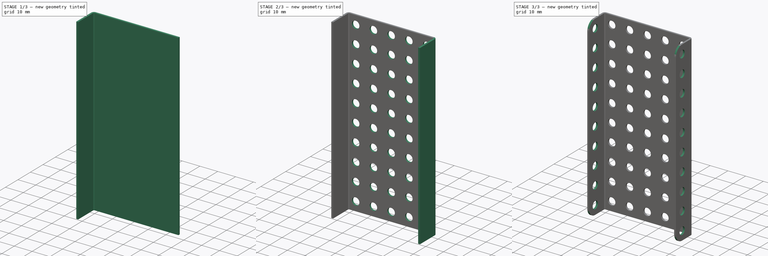
[diagram: build sequence overview — one tinted view per stage of 3, left to right]
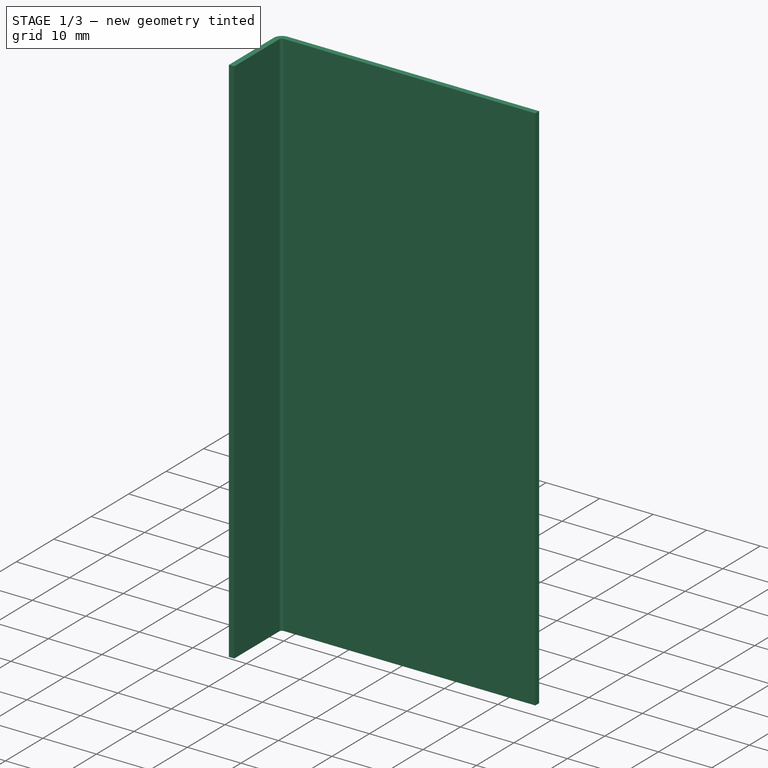
[diagram: stage 1 of 3 — iso view after this stage's code; geometry added in this stage tinted green]
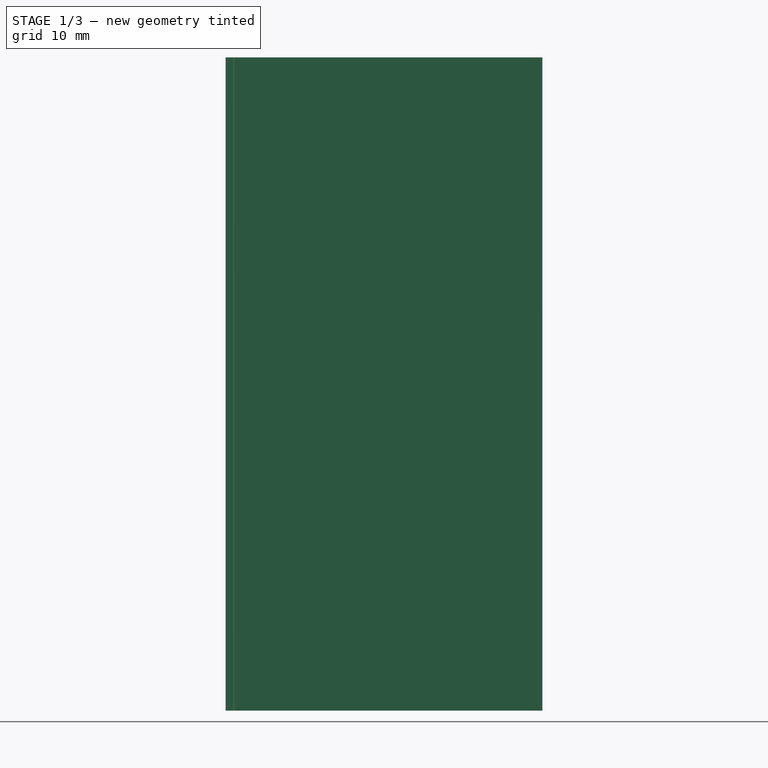
[diagram: stage 1 of 3 — front view after this stage's code; geometry added in this stage tinted green]
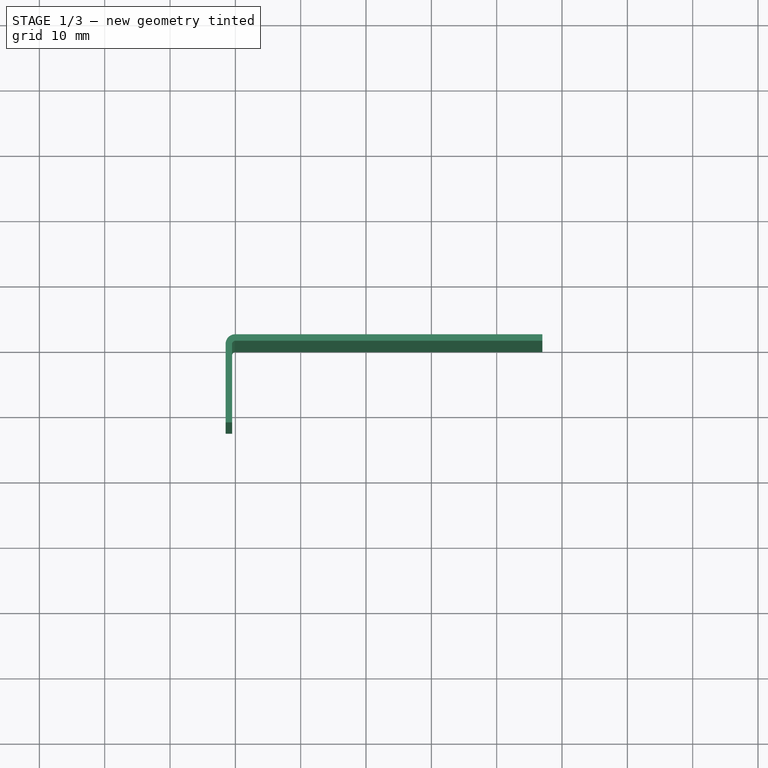
[diagram: stage 1 of 3 — top view after this stage's code; geometry added in this stage tinted green]
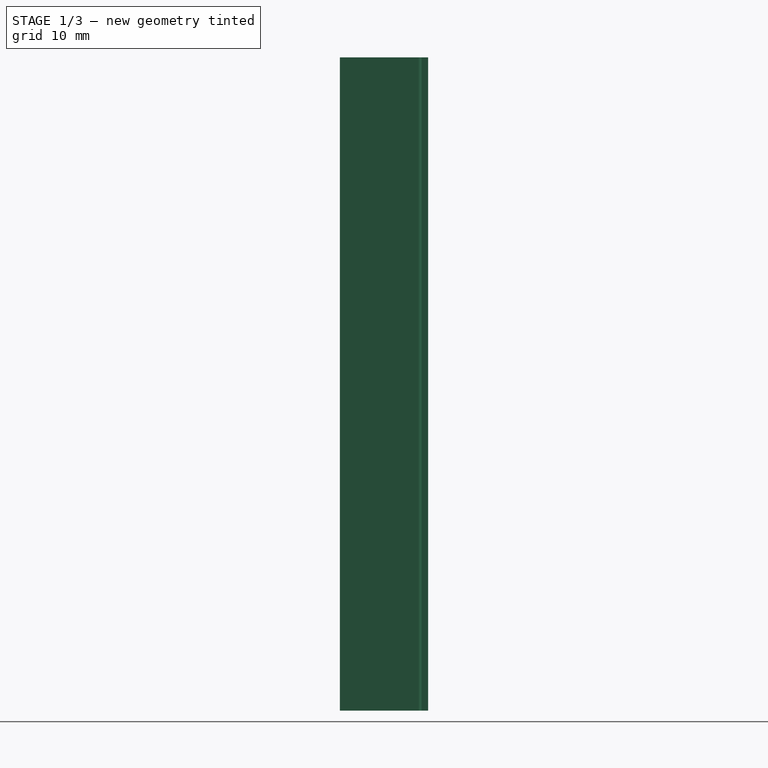
[diagram: stage 1 of 3 — right view after this stage's code; geometry added in this stage tinted green]
FCSTD DOCUMENT  (FreeCAD 0.16RUnknown)
Label: panel_5_5x10_5_v2
License: All rights reserved
LicenseURL: http://en.wikipedia.org/wiki/All_rights_reserved
objects: Sketcher::SketchObject×3, Part::FeaturePython×2, PartDesign::Pocket×2, Drawing::FeatureViewPart×2, PartDesign::Pad×1, PartDesign::Fillet×1, Part::Feature×1, Drawing::FeaturePage×1
note: 13 computed .brp shape members not serialized (recipe doc carries the construction recipe); baked Part::Feature solids carry a one-line shape summary decoded from their .brp

FEATURE [Sketcher::SketchObject] Sketch
  sketch-geometry (4):
    g0: LineSegment StartX=0 StartY=0 StartZ=0 EndX=47 EndY=0 EndZ=0
    g1: LineSegment StartX=47 StartY=0 StartZ=0 EndX=47 EndY=1 EndZ=0
    g2: LineSegment StartX=47 StartY=1 StartZ=0 EndX=0 EndY=1 EndZ=0
    g3: LineSegment StartX=0 StartY=1 StartZ=0 EndX=0 EndY=0 EndZ=0
  constraints (11):
    c: Coincident(g0,g1)
    c: Coincident(g1,g2)
    c: Coincident(g2,g3)
    c: Coincident(g3,g0)
    c: Horizontal(g0)
    c: Horizontal(g2)
    c: Vertical(g1)
    c: Vertical(g3)
    c: Coincident(g0,g-1)
    c: DistanceY(g-1,g2) = 1
    c: DistanceX(g-1,g0) = 47
FEATURE [PartDesign::Pad] Pad
  Length = 100
  Length2 = 100
  Sketch = -> Sketch
  Type = 0
FEATURE [Part::FeaturePython] Bend  # WARN: FeaturePython — macro-defined, semantics opaque (R4)
  angle = 90
  baseObject = -> Pad [Face4]
  gap1 = 0
  gap2 = 0
  invert = false
  length = 12
  radius = 0.5
  reliefd = 1
  reliefw = 0.5
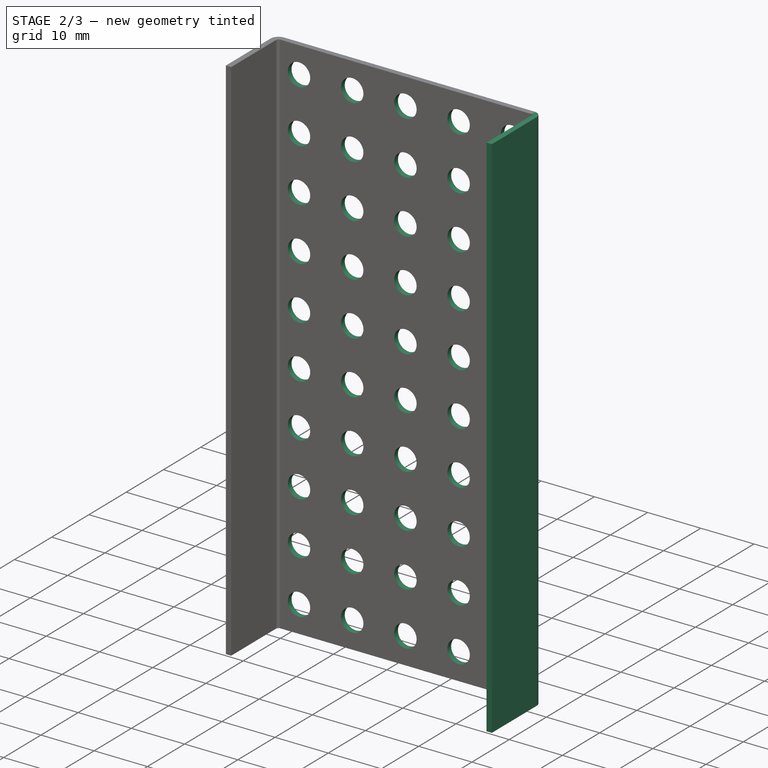
[diagram: stage 2 of 3 — iso view after this stage's code; geometry added in this stage tinted green]
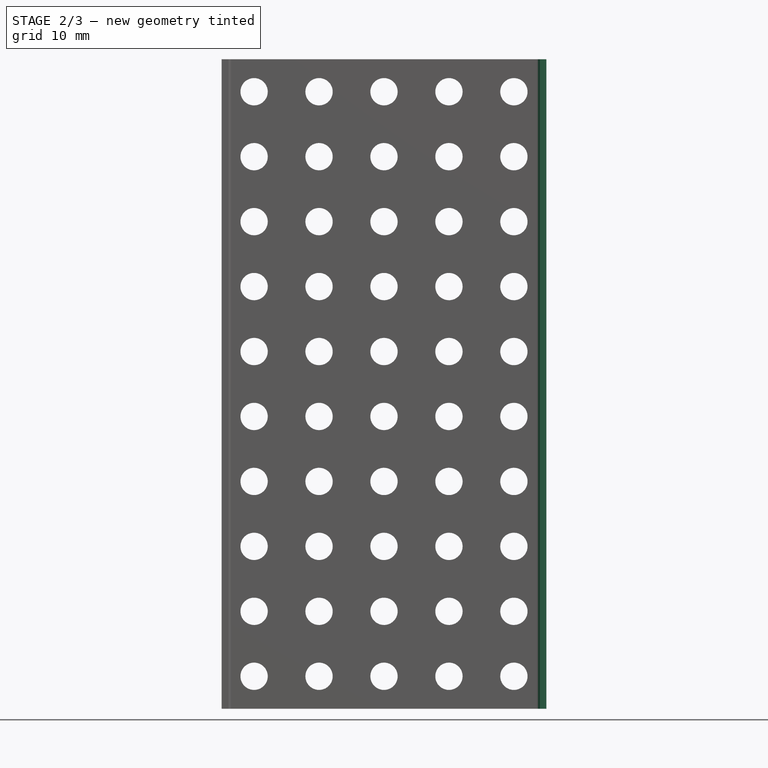
[diagram: stage 2 of 3 — front view after this stage's code; geometry added in this stage tinted green]
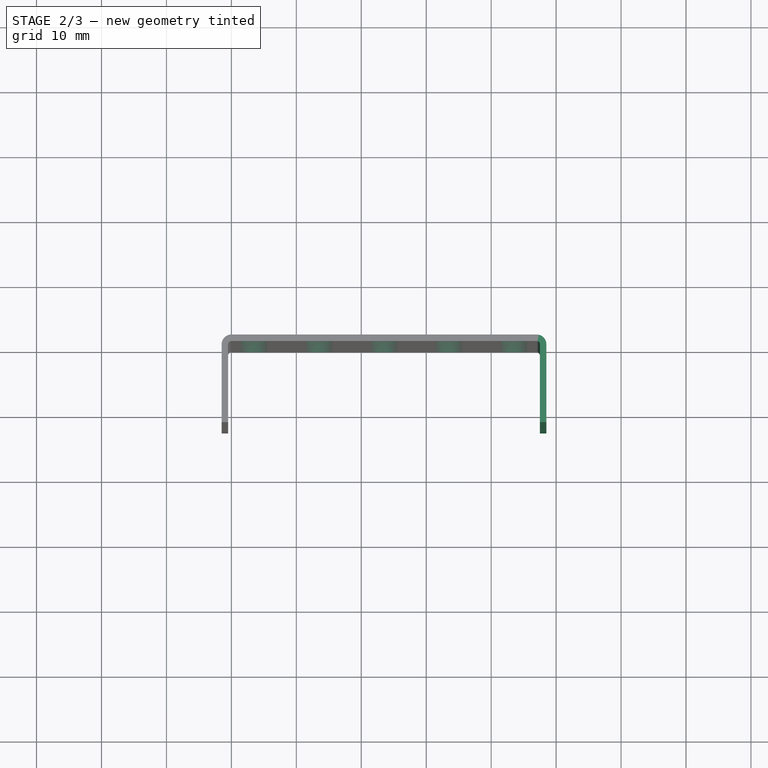
[diagram: stage 2 of 3 — top view after this stage's code; geometry added in this stage tinted green]
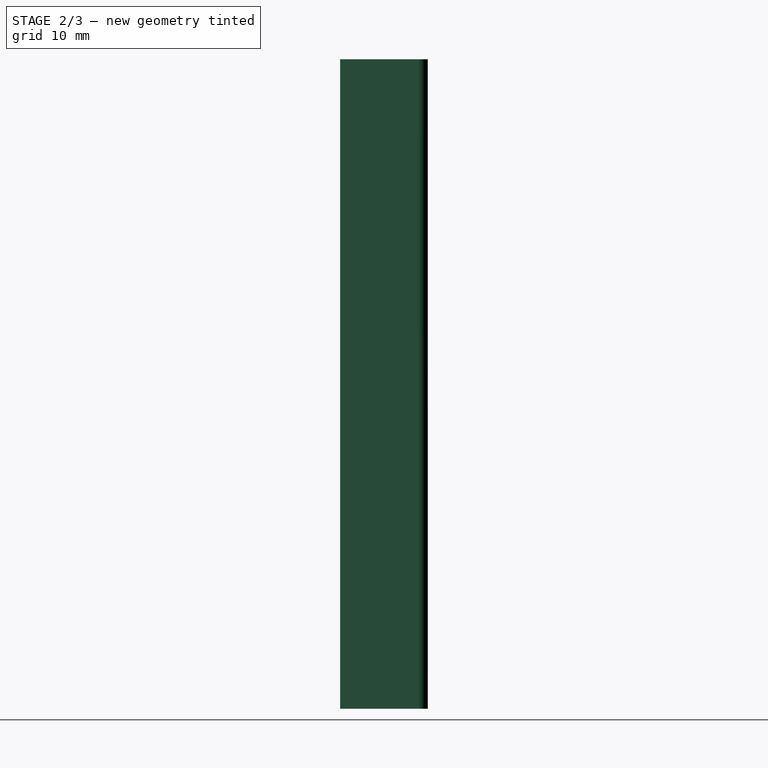
[diagram: stage 2 of 3 — right view after this stage's code; geometry added in this stage tinted green]
FEATURE [Part::FeaturePython] Bend001  # WARN: FeaturePython — macro-defined, semantics opaque (R4)
  angle = 90
  baseObject = -> Bend [Face14]
  gap1 = 0
  gap2 = 0
  invert = true
  length = 12
  radius = 0.5
  reliefd = 1
  reliefw = 0.5
FEATURE [Sketcher::SketchObject] Sketch003
  Placement = pos=(0,1,0) rot=(0,0.707107,0.707107;3.14159rad)
  Support = -> Bend001 [Face11]
  sketch-geometry (99):
    g0: Circle CenterX=-43.5 CenterY=95 CenterZ=0 NormalX=0 NormalY=0 NormalZ=1 Radius=2.1
    g1: Circle CenterX=-33.5 CenterY=95 CenterZ=0 NormalX=0 NormalY=0 NormalZ=1 Radius=2.1
    g2: LineSegment [constr] StartX=-43.5 StartY=95 StartZ=0 EndX=-33.5 EndY=95 EndZ=0
    g3: Circle CenterX=-23.5 CenterY=95 CenterZ=0 NormalX=0 NormalY=0 NormalZ=1 Radius=2.1
    g4: LineSegment [constr] StartX=-33.5 StartY=95 StartZ=0 EndX=-23.5 EndY=95 EndZ=0
    g5: Circle CenterX=-13.5 CenterY=95 CenterZ=0 NormalX=0 NormalY=0 NormalZ=1 Radius=2.1
    g6: LineSegment [constr] StartX=-23.5 StartY=95 StartZ=0 EndX=-13.5 EndY=95 EndZ=0
    g7: Circle CenterX=-3.5 CenterY=95 CenterZ=0 NormalX=0 NormalY=0 NormalZ=1 Radius=2.1
    g8: LineSegment [constr] StartX=-13.5 StartY=95 StartZ=0 EndX=-3.5 EndY=95 EndZ=0
    g9: Circle CenterX=-43.5 CenterY=85 CenterZ=0 NormalX=0 NormalY=0 NormalZ=1 Radius=2.1
    g10: LineSegment [constr] StartX=-43.5 StartY=95 StartZ=0 EndX=-43.5 EndY=85 EndZ=0
    g11: Circle CenterX=-33.5 CenterY=85 CenterZ=0 NormalX=0 NormalY=0 NormalZ=1 Radius=2.1
    g12: LineSegment [constr] StartX=-43.5 StartY=85 StartZ=0 EndX=-33.5 EndY=85 EndZ=0
    g13: Circle CenterX=-23.5 CenterY=85 CenterZ=0 NormalX=0 NormalY=0 NormalZ=1 Radius=2.1
    g14: LineSegment [constr] StartX=-33.5 StartY=85 StartZ=0 EndX=-23.5 EndY=85 EndZ=0
    g15: Circle CenterX=-13.5 CenterY=85 CenterZ=0 NormalX=0 NormalY=0 NormalZ=1 Radius=2.1
    g16: LineSegment [constr] StartX=-23.5 StartY=85 StartZ=0 EndX=-13.5 EndY=85 EndZ=0
    g17: Circle CenterX=-3.5 CenterY=85 CenterZ=0 NormalX=0 NormalY=0 NormalZ=1 Radius=2.1
    g18: LineSegment [constr] StartX=-13.5 StartY=85 StartZ=0 EndX=-3.5 EndY=85 EndZ=0
    g19: Circle CenterX=-43.5 CenterY=75 CenterZ=0 NormalX=0 NormalY=0 NormalZ=1 Radius=2.1
    g20: LineSegment [constr] StartX=-43.5 StartY=85 StartZ=0 EndX=-43.5 EndY=75 EndZ=0
    g21: Circle CenterX=-33.5 CenterY=75 CenterZ=0 NormalX=0 NormalY=0 NormalZ=1 Radius=2.1
    g22: LineSegment [constr] StartX=-43.5 StartY=75 StartZ=0 EndX=-33.5 EndY=75 EndZ=0
    g23: Circle CenterX=-23.5 CenterY=75 CenterZ=0 NormalX=0 NormalY=0 NormalZ=1 Radius=2.1
    g24: LineSegment [constr] StartX=-33.5 StartY=75 StartZ=0 EndX=-23.5 EndY=75 EndZ=0
    g25: Circle CenterX=-13.5 CenterY=75 CenterZ=0 NormalX=0 NormalY=0 NormalZ=1 Radius=2.1
    g26: LineSegment [constr] StartX=-23.5 StartY=75 StartZ=0 EndX=-13.5 EndY=75 EndZ=0
    g27: Circle CenterX=-3.5 CenterY=75 CenterZ=0 NormalX=0 NormalY=0 NormalZ=1 Radius=2.1
    g28: LineSegment [constr] StartX=-13.5 StartY=75 StartZ=0 EndX=-3.5 EndY=75 EndZ=0
    g29: Circle CenterX=-43.5 CenterY=65 CenterZ=0 NormalX=0 NormalY=0 NormalZ=1 Radius=2.1
    g30: LineSegment [constr] StartX=-43.5 StartY=75 StartZ=0 EndX=-43.5 EndY=65 EndZ=0
    g31: Circle CenterX=-33.5 CenterY=65 CenterZ=0 NormalX=0 NormalY=0 NormalZ=1 Radius=2.1
    g32: LineSegment [constr] StartX=-43.5 StartY=65 StartZ=0 EndX=-33.5 EndY=65 EndZ=0
    g33: Circle CenterX=-23.5 CenterY=65 CenterZ=0 NormalX=0 NormalY=0 NormalZ=1 Radius=2.1
    g34: LineSegment [constr] StartX=-33.5 StartY=65 StartZ=0 EndX=-23.5 EndY=65 EndZ=0
    g35: Circle CenterX=-13.5 CenterY=65 CenterZ=0 NormalX=0 NormalY=0 NormalZ=1 Radius=2.1
    g36: LineSegment [constr] StartX=-23.5 StartY=65 StartZ=0 EndX=-13.5 EndY=65 EndZ=0
    g37: Circle CenterX=-3.5 CenterY=65 CenterZ=0 NormalX=0 NormalY=0 NormalZ=1 Radius=2.1
    g38: LineSegment [constr] StartX=-13.5 StartY=65 StartZ=0 EndX=-3.5 EndY=65 EndZ=0
    g39: Circle CenterX=-43.5 CenterY=55 CenterZ=0 NormalX=0 NormalY=0 NormalZ=1 Radius=2.1
    g40: LineSegment [constr] StartX=-43.5 StartY=65 StartZ=0 EndX=-43.5 EndY=55 EndZ=0
    g41: Circle CenterX=-33.5 CenterY=55 CenterZ=0 NormalX=0 NormalY=0 NormalZ=1 Radius=2.1
    g42: LineSegment [constr] StartX=-43.5 StartY=55 StartZ=0 EndX=-33.5 EndY=55 EndZ=0
    g43: Circle CenterX=-23.5 CenterY=55 CenterZ=0 NormalX=0 NormalY=0 NormalZ=1 Radius=2.1
    g44: LineSegment [constr] StartX=-33.5 StartY=55 StartZ=0 EndX=-23.5 EndY=55 EndZ=0
    g45: Circle CenterX=-13.5 CenterY=55 CenterZ=0 NormalX=0 NormalY=0 NormalZ=1 Radius=2.1
    g46: LineSegment [constr] StartX=-23.5 StartY=55 StartZ=0 EndX=-13.5 EndY=55 EndZ=0
    g47: Circle CenterX=-3.5 CenterY=55 CenterZ=0 NormalX=0 NormalY=0 NormalZ=1 Radius=2.1
    g48: LineSegment [constr] StartX=-13.5 StartY=55 StartZ=0 EndX=-3.5 EndY=55 EndZ=0
    g49: Circle CenterX=-43.5 CenterY=45 CenterZ=0 NormalX=0 NormalY=0 NormalZ=1 Radius=2.1
    g50: LineSegment [constr] StartX=-43.5 StartY=55 StartZ=0 EndX=-43.5 EndY=45 EndZ=0
    g51: Circle CenterX=-33.5 CenterY=45 CenterZ=0 NormalX=0 NormalY=0 NormalZ=1 Radius=2.1
    g52: LineSegment [constr] StartX=-43.5 StartY=45 StartZ=0 EndX=-33.5 EndY=45 EndZ=0
    g53: Circle CenterX=-23.5 CenterY=45 CenterZ=0 NormalX=0 NormalY=0 NormalZ=1 Radius=2.1
    g54: LineSegment [constr] StartX=-33.5 StartY=45 StartZ=0 EndX=-23.5 EndY=45 EndZ=0
    g55: Circle CenterX=-13.5 CenterY=45 CenterZ=0 NormalX=0 NormalY=0 NormalZ=1 Radius=2.1
    g56: LineSegment [constr] StartX=-23.5 StartY=45 StartZ=0 EndX=-13.5 EndY=45 EndZ=0
    g57: Circle CenterX=-3.5 CenterY=45 CenterZ=0 NormalX=0 NormalY=0 NormalZ=1 Radius=2.1
    g58: LineSegment [constr] StartX=-13.5 StartY=45 StartZ=0 EndX=-3.5 EndY=45 EndZ=0
    g59: Circle CenterX=-43.5 CenterY=35 CenterZ=0 NormalX=0 NormalY=0 NormalZ=1 Radius=2.1
    g60: LineSegment [constr] StartX=-43.5 StartY=45 StartZ=0 EndX=-43.5 EndY=35 EndZ=0
    g61: Circle CenterX=-33.5 CenterY=35 CenterZ=0 NormalX=0 NormalY=0 NormalZ=1 Radius=2.1
    g62: LineSegment [constr] StartX=-43.5 StartY=35 StartZ=0 EndX=-33.5 EndY=35 EndZ=0
    g63: Circle CenterX=-23.5 CenterY=35 CenterZ=0 NormalX=0 NormalY=0 NormalZ=1 Radius=2.1
    g64: LineSegment [constr] StartX=-33.5 StartY=35 StartZ=0 EndX=-23.5 EndY=35 EndZ=0
    g65: Circle CenterX=-13.5 CenterY=35 CenterZ=0 NormalX=0 NormalY=0 NormalZ=1 Radius=2.1
    g66: LineSegment [constr] StartX=-23.5 StartY=35 StartZ=0 EndX=-13.5 EndY=35 EndZ=0
    g67: Circle CenterX=-3.5 CenterY=35 CenterZ=0 NormalX=0 NormalY=0 NormalZ=1 Radius=2.1
    g68: LineSegment [constr] StartX=-13.5 StartY=35 StartZ=0 EndX=-3.5 EndY=35 EndZ=0
    g69: Circle CenterX=-43.5 CenterY=25 CenterZ=0 NormalX=0 NormalY=0 NormalZ=1 Radius=2.1
    g70: LineSegment [constr] StartX=-43.5 StartY=35 StartZ=0 EndX=-43.5 EndY=25 EndZ=0
    g71: Circle CenterX=-33.5 CenterY=25 CenterZ=0 NormalX=0 NormalY=0 NormalZ=1 Radius=2.1
    g72: LineSegment [constr] StartX=-43.5 StartY=25 StartZ=0 EndX=-33.5 EndY=25 EndZ=0
    g73: Circle CenterX=-23.5 CenterY=25 CenterZ=0 NormalX=0 NormalY=0 NormalZ=1 Radius=2.1
    g74: LineSegment [constr] StartX=-33.5 StartY=25 StartZ=0 EndX=-23.5 EndY=25 EndZ=0
    g75: Circle CenterX=-13.5 CenterY=25 CenterZ=0 NormalX=0 NormalY=0 NormalZ=1 Radius=2.1
    g76: LineSegment [constr] StartX=-23.5 StartY=25 StartZ=0 EndX=-13.5 EndY=25 EndZ=0
    g77: Circle CenterX=-3.5 CenterY=25 CenterZ=0 NormalX=0 NormalY=0 NormalZ=1 Radius=2.1
    g78: LineSegment [constr] StartX=-13.5 StartY=25 StartZ=0 EndX=-3.5 EndY=25 EndZ=0
    g79: Circle CenterX=-43.5 CenterY=15 CenterZ=0 NormalX=0 NormalY=0 NormalZ=1 Radius=2.1
    g80: LineSegment [constr] StartX=-43.5 StartY=25 StartZ=0 EndX=-43.5 EndY=15 EndZ=0
    g81: Circle CenterX=-33.5 CenterY=15 CenterZ=0 NormalX=0 NormalY=0 NormalZ=1 Radius=2.1
    g82: LineSegment [constr] StartX=-43.5 StartY=15 StartZ=0 EndX=-33.5 EndY=15 EndZ=0
    g83: Circle CenterX=-23.5 CenterY=15 CenterZ=0 NormalX=0 NormalY=0 NormalZ=1 Radius=2.1
    g84: LineSegment [constr] StartX=-33.5 StartY=15 StartZ=0 EndX=-23.5 EndY=15 EndZ=0
    g85: Circle CenterX=-13.5 CenterY=15 CenterZ=0 NormalX=0 NormalY=0 NormalZ=1 Radius=2.1
    g86: LineSegment [constr] StartX=-23.5 StartY=15 StartZ=0 EndX=-13.5 EndY=15 EndZ=0
    g87: Circle CenterX=-3.5 CenterY=15 CenterZ=0 NormalX=0 NormalY=0 NormalZ=1 Radius=2.1
    g88: LineSegment [constr] StartX=-13.5 StartY=15 StartZ=0 EndX=-3.5 EndY=15 EndZ=0
    g89: Circle CenterX=-43.5 CenterY=5 CenterZ=0 NormalX=0 NormalY=0 NormalZ=1 Radius=2.1
    g90: LineSegment [constr] StartX=-43.5 StartY=15 StartZ=0 EndX=-43.5 EndY=5 EndZ=0
    g91: Circle CenterX=-33.5 CenterY=5 CenterZ=0 NormalX=0 NormalY=0 NormalZ=1 Radius=2.1
    g92: LineSegment [constr] StartX=-43.5 StartY=5 StartZ=0 EndX=-33.5 EndY=5 EndZ=0
    g93: Circle CenterX=-23.5 CenterY=5 CenterZ=0 NormalX=0 NormalY=0 NormalZ=1 Radius=2.1
    g94: LineSegment [constr] StartX=-33.5 StartY=5 StartZ=0 EndX=-23.5 EndY=5 EndZ=0
    g95: Circle CenterX=-13.5 CenterY=5 CenterZ=0 NormalX=0 NormalY=0 NormalZ=1 Radius=2.1
    g96: LineSegment [constr] StartX=-23.5 StartY=5 StartZ=0 EndX=-13.5 EndY=5 EndZ=0
    g97: Circle CenterX=-3.5 CenterY=5 CenterZ=0 NormalX=0 NormalY=0 NormalZ=1 Radius=2.1
    g98: LineSegment [constr] StartX=-13.5 StartY=5 StartZ=0 EndX=-3.5 EndY=5 EndZ=0
  constraints (246):
    c: Radius(g0) = 2.1
    c: Equal(g0,g1) = 2.1
    c: Coincident(g0,g2)
    c: Coincident(g1,g2)
    c: Distance(g2) = 10
    c: Angle(g2) = 0
    c: Equal(g0,g3) = 2.1
    c: Coincident(g1,g4)
    c: Coincident(g3,g4)
    c: Equal(g2,g4)
    c: Parallel(g4,g2)
    c: Equal(g0,g5) = 2.1
    c: Coincident(g3,g6)
    c: Coincident(g5,g6)
    c: Equal(g2,g6)
    c: Parallel(g6,g2)
    c: Equal(g0,g7) = 2.1
    c: Coincident(g5,g8)
    c: Coincident(g7,g8)
    c: Equal(g2,g8)
    c: Parallel(g8,g2)
    c: Equal(g0,g9) = 2.1
    c: Coincident(g0,g10)
    c: Coincident(g9,g10)
    c: Equal(g10,g2)
    c: Perpendicular(g10,g2)
    c: Equal(g0,g11) = 2.1
    c: Coincident(g9,g12)
    c: Coincident(g11,g12)
    c: Equal(g2,g12)
    c: Parallel(g12,g2)
    c: Equal(g0,g13) = 2.1
    c: Coincident(g11,g14)
    c: Coincident(g13,g14)
    c: Equal(g2,g14)
    c: Parallel(g14,g2)
    c: Equal(g0,g15) = 2.1
    c: Coincident(g13,g16)
    c: Coincident(g15,g16)
    c: Equal(g2,g16)
    c: Parallel(g16,g2)
    c: Equal(g0,g17) = 2.1
    c: Coincident(g15,g18)
    c: Coincident(g17,g18)
    c: Equal(g2,g18)
    c: Parallel(g18,g2)
    c: Equal(g0,g19) = 2.1
    c: Coincident(g9,g20)
    c: Coincident(g19,g20)
    c: Equal(g10,g20)
    c: Perpendicular(g20,g2)
    c: Equal(g0,g21) = 2.1
    c: Coincident(g19,g22)
    c: Coincident(g21,g22)
    c: Equal(g2,g22)
    c: Parallel(g22,g2)
    c: Equal(g0,g23) = 2.1
    c: Coincident(g21,g24)
    c: Coincident(g23,g24)
    c: Equal(g2,g24)
    c: Parallel(g24,g2)
    c: Equal(g0,g25) = 2.1
    c: Coincident(g23,g26)
    c: Coincident(g25,g26)
    c: Equal(g2,g26)
    c: Parallel(g26,g2)
    c: Equal(g0,g27) = 2.1
    c: Coincident(g25,g28)
    c: Coincident(g27,g28)
    c: Equal(g2,g28)
    c: Parallel(g28,g2)
    c: Equal(g0,g29) = 2.1
    c: Coincident(g19,g30)
    c: Coincident(g29,g30)
    c: Equal(g10,g30)
    c: Perpendicular(g30,g2)
    c: Equal(g0,g31) = 2.1
    c: Coincident(g29,g32)
    c: Coincident(g31,g32)
    c: Equal(g2,g32)
    c: Parallel(g32,g2)
    c: Equal(g0,g33) = 2.1
    c: Coincident(g31,g34)
    c: Coincident(g33,g34)
    c: Equal(g2,g34)
    c: Parallel(g34,g2)
    c: Equal(g0,g35) = 2.1
    c: Coincident(g33,g36)
    c: Coincident(g35,g36)
    c: Equal(g2,g36)
    c: Parallel(g36,g2)
    c: Equal(g0,g37) = 2.1
    c: Coincident(g35,g38)
    c: Coincident(g37,g38)
    c: Equal(g2,g38)
    c: Parallel(g38,g2)
    c: Equal(g0,g39) = 2.1
    c: Coincident(g29,g40)
    c: Coincident(g39,g40)
    c: Equal(g10,g40)
    c: Perpendicular(g40,g2)
    c: Equal(g0,g41) = 2.1
    c: Coincident(g39,g42)
    c: Coincident(g41,g42)
    c: Equal(g2,g42)
    c: Parallel(g42,g2)
    c: Equal(g0,g43) = 2.1
    c: Coincident(g41,g44)
    c: Coincident(g43,g44)
    c: Equal(g2,g44)
    c: Parallel(g44,g2)
    c: Equal(g0,g45) = 2.1
    c: Coincident(g43,g46)
    c: Coincident(g45,g46)
    c: Equal(g2,g46)
    c: Parallel(g46,g2)
    c: Equal(g0,g47) = 2.1
    c: Coincident(g45,g48)
    c: Coincident(g47,g48)
    c: Equal(g2,g48)
    c: Parallel(g48,g2)
    c: Equal(g0,g49) = 2.1
    c: Coincident(g39,g50)
    c: Coincident(g49,g50)
    c: Equal(g10,g50)
    c: Perpendicular(g50,g2)
    c: Equal(g0,g51) = 2.1
    c: Coincident(g49,g52)
    c: Coincident(g51,g52)
    c: Equal(g2,g52)
    c: Parallel(g52,g2)
    c: Equal(g0,g53) = 2.1
    c: Coincident(g51,g54)
    c: Coincident(g53,g54)
    c: Equal(g2,g54)
    c: Parallel(g54,g2)
    c: Equal(g0,g55) = 2.1
    c: Coincident(g53,g56)
    c: Coincident(g55,g56)
    c: Equal(g2,g56)
    c: Parallel(g56,g2)
    c: Equal(g0,g57) = 2.1
    c: Coincident(g55,g58)
    c: Coincident(g57,g58)
    c: Equal(g2,g58)
    c: Parallel(g58,g2)
    c: Equal(g0,g59) = 2.1
    c: Coincident(g49,g60)
    c: Coincident(g59,g60)
    c: Equal(g10,g60)
    c: Perpendicular(g60,g2)
    c: Equal(g0,g61) = 2.1
    c: Coincident(g59,g62)
    c: Coincident(g61,g62)
    c: Equal(g2,g62)
    c: Parallel(g62,g2)
    c: Equal(g0,g63) = 2.1
    c: Coincident(g61,g64)
    c: Coincident(g63,g64)
    c: Equal(g2,g64)
    c: Parallel(g64,g2)
    c: Equal(g0,g65) = 2.1
    c: Coincident(g63,g66)
    c: Coincident(g65,g66)
    c: Equal(g2,g66)
    c: Parallel(g66,g2)
    c: Equal(g0,g67) = 2.1
    c: Coincident(g65,g68)
    c: Coincident(g67,g68)
    c: Equal(g2,g68)
    c: Parallel(g68,g2)
    c: Equal(g0,g69) = 2.1
    c: Coincident(g59,g70)
    c: Coincident(g69,g70)
    c: Equal(g10,g70)
    c: Perpendicular(g70,g2)
    c: Equal(g0,g71) = 2.1
    c: Coincident(g69,g72)
    c: Coincident(g71,g72)
    c: Equal(g2,g72)
    c: Parallel(g72,g2)
    c: Equal(g0,g73) = 2.1
    c: Coincident(g71,g74)
    c: Coincident(g73,g74)
    c: Equal(g2,g74)
    c: Parallel(g74,g2)
    c: Equal(g0,g75) = 2.1
    c: Coincident(g73,g76)
    c: Coincident(g75,g76)
    c: Equal(g2,g76)
    c: Parallel(g76,g2)
    c: Equal(g0,g77) = 2.1
    c: Coincident(g75,g78)
    c: Coincident(g77,g78)
    c: Equal(g2,g78)
    c: Parallel(g78,g2)
    c: Equal(g0,g79) = 2.1
    c: Coincident(g69,g80)
    c: Coincident(g79,g80)
    c: Equal(g10,g80)
    c: Perpendicular(g80,g2)
    c: Equal(g0,g81) = 2.1
    c: Coincident(g79,g82)
    c: Coincident(g81,g82)
    c: Equal(g2,g82)
    c: Parallel(g82,g2)
    c: Equal(g0,g83) = 2.1
    c: Coincident(g81,g84)
    c: Coincident(g83,g84)
    c: Equal(g2,g84)
    c: Parallel(g84,g2)
    c: Equal(g0,g85) = 2.1
    c: Coincident(g83,g86)
    c: Coincident(g85,g86)
    c: Equal(g2,g86)
    c: Parallel(g86,g2)
    c: Equal(g0,g87) = 2.1
    c: Coincident(g85,g88)
    c: Coincident(g87,g88)
    c: Equal(g2,g88)
    c: Parallel(g88,g2)
    c: Equal(g0,g89) = 2.1
    c: Coincident(g79,g90)
    c: Coincident(g89,g90)
    c: Equal(g10,g90)
    c: Perpendicular(g90,g2)
    c: Equal(g0,g91) = 2.1
    c: Coincident(g89,g92)
    c: Coincident(g91,g92)
    c: Equal(g2,g92)
    c: Parallel(g92,g2)
    c: Equal(g0,g93) = 2.1
    c: Coincident(g91,g94)
    c: Coincident(g93,g94)
    c: Equal(g2,g94)
    c: Parallel(g94,g2)
    c: Equal(g0,g95) = 2.1
    c: Coincident(g93,g96)
    c: Coincident(g95,g96)
    c: Equal(g2,g96)
    c: Parallel(g96,g2)
    c: Equal(g0,g97) = 2.1
    c: Coincident(g95,g98)
    c: Coincident(g97,g98)
    c: Equal(g2,g98)
    c: Parallel(g98,g2)
FEATURE [PartDesign::Pocket] Pocket
  Length = 5
  Sketch = -> Sketch003
  Type = 0
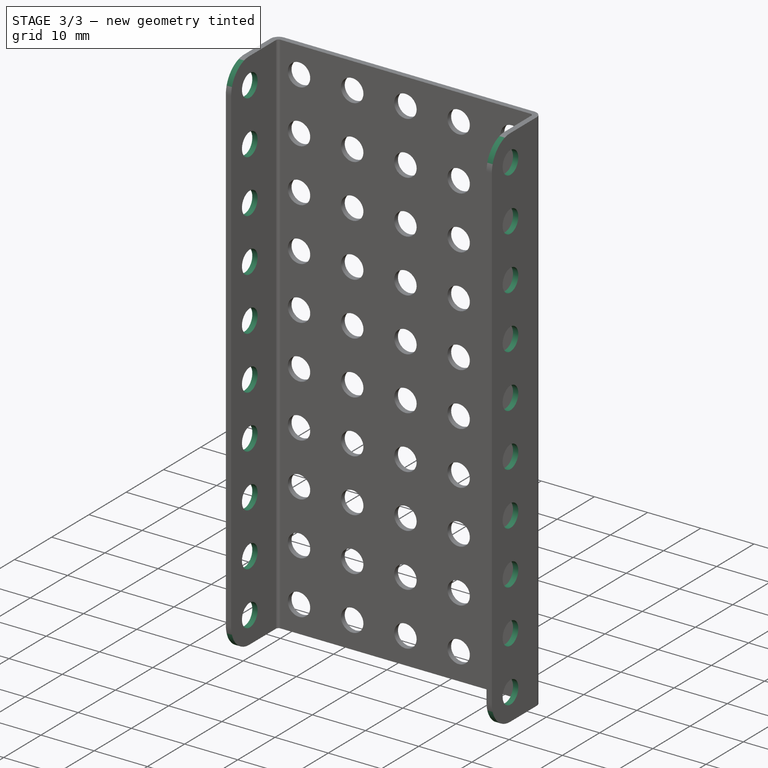
[diagram: stage 3 of 3 — iso view after this stage's code; geometry added in this stage tinted green]
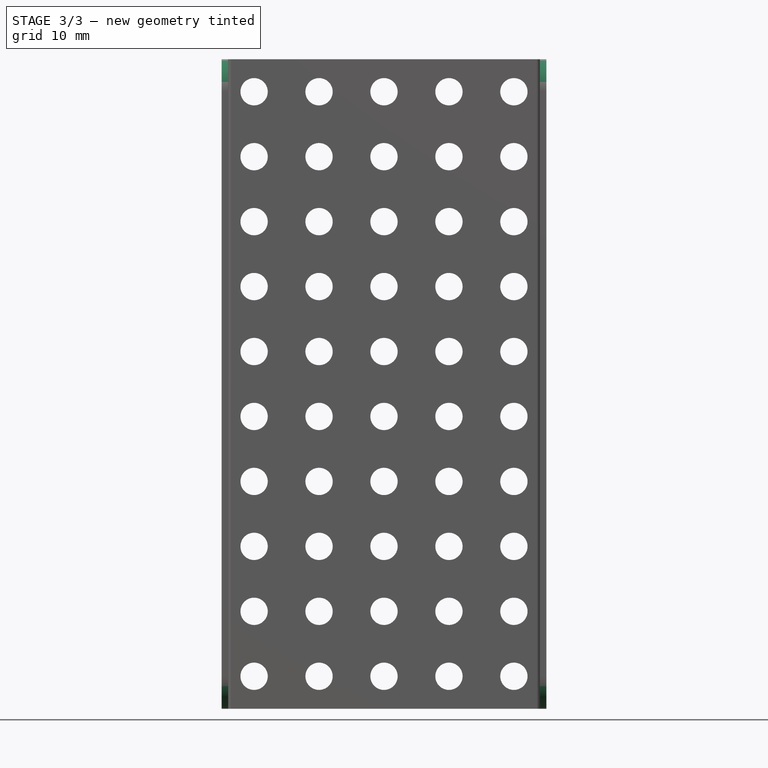
[diagram: stage 3 of 3 — front view after this stage's code; geometry added in this stage tinted green]
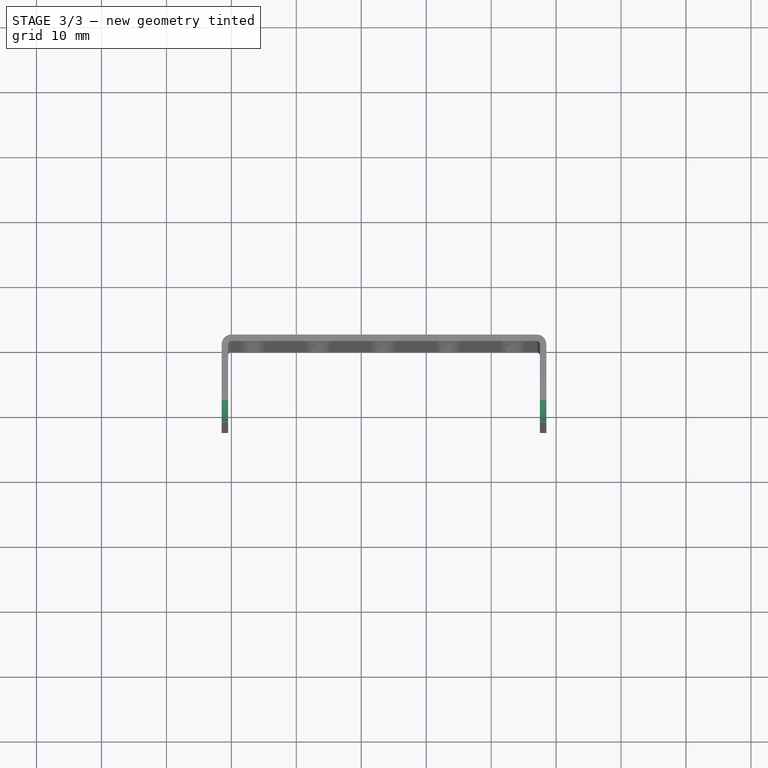
[diagram: stage 3 of 3 — top view after this stage's code; geometry added in this stage tinted green]
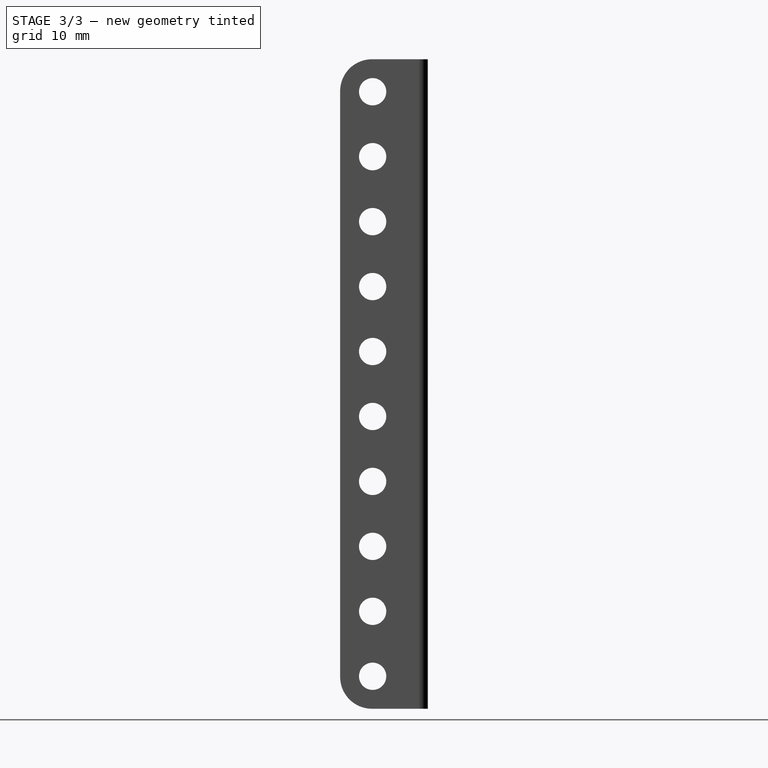
[diagram: stage 3 of 3 — right view after this stage's code; geometry added in this stage tinted green]
FEATURE [Sketcher::SketchObject] Sketch002
  ExternalGeometry = -> [Bend001]
  Placement = pos=(48.5,0,0) rot=(0.57735,0.57735,0.57735;2.0944rad)
  Support = -> Pocket [Face3]
  sketch-geometry (19):
    g0: Circle CenterX=-7.5 CenterY=95 CenterZ=0 NormalX=0 NormalY=0 NormalZ=1 Radius=2.1
    g1: Circle CenterX=-7.5 CenterY=85 CenterZ=0 NormalX=0 NormalY=0 NormalZ=1 Radius=2.1
    g2: LineSegment [constr] StartX=-7.5 StartY=95 StartZ=0 EndX=-7.5 EndY=85 EndZ=0
    g3: Circle CenterX=-7.5 CenterY=75 CenterZ=0 NormalX=0 NormalY=0 NormalZ=1 Radius=2.1
    g4: LineSegment [constr] StartX=-7.5 StartY=85 StartZ=0 EndX=-7.5 EndY=75 EndZ=0
    g5: Circle CenterX=-7.5 CenterY=65 CenterZ=0 NormalX=0 NormalY=0 NormalZ=1 Radius=2.1
    g6: LineSegment [constr] StartX=-7.5 StartY=75 StartZ=0 EndX=-7.5 EndY=65 EndZ=0
    g7: Circle CenterX=-7.5 CenterY=55 CenterZ=0 NormalX=0 NormalY=0 NormalZ=1 Radius=2.1
    g8: LineSegment [constr] StartX=-7.5 StartY=65 StartZ=0 EndX=-7.5 EndY=55 EndZ=0
    g9: Circle CenterX=-7.5 CenterY=45 CenterZ=0 NormalX=0 NormalY=0 NormalZ=1 Radius=2.1
    g10: LineSegment [constr] StartX=-7.5 StartY=55 StartZ=0 EndX=-7.5 EndY=45 EndZ=0
    g11: Circle CenterX=-7.5 CenterY=35 CenterZ=0 NormalX=0 NormalY=0 NormalZ=1 Radius=2.1
    g12: LineSegment [constr] StartX=-7.5 StartY=45 StartZ=0 EndX=-7.5 EndY=35 EndZ=0
    g13: Circle CenterX=-7.5 CenterY=25 CenterZ=0 NormalX=0 NormalY=0 NormalZ=1 Radius=2.1
    g14: LineSegment [constr] StartX=-7.5 StartY=35 StartZ=0 EndX=-7.5 EndY=25 EndZ=0
    g15: Circle CenterX=-7.5 CenterY=15 CenterZ=0 NormalX=0 NormalY=0 NormalZ=1 Radius=2.1
    g16: LineSegment [constr] StartX=-7.5 StartY=25 StartZ=0 EndX=-7.5 EndY=15 EndZ=0
    g17: Circle CenterX=-7.5 CenterY=5 CenterZ=0 NormalX=0 NormalY=0 NormalZ=1 Radius=2.1
    g18: LineSegment [constr] StartX=-7.5 StartY=15 StartZ=0 EndX=-7.5 EndY=5 EndZ=0
  constraints (48):
    c: Radius(g0) = 2.1
    c: DistanceX(g-4,g0) = 5
    c: DistanceY(g0,g-4) = 5
    c: Equal(g0,g1) = 2.1
    c: Coincident(g0,g2)
    c: Coincident(g1,g2)
    c: Distance(g2) = 10
    c: Angle(g2) = -1.5708
    c: Equal(g0,g3) = 2.1
    c: Coincident(g1,g4)
    c: Coincident(g3,g4)
    c: Equal(g2,g4)
    c: Parallel(g4,g2)
    c: Equal(g0,g5) = 2.1
    c: Coincident(g3,g6)
    c: Coincident(g5,g6)
    c: Equal(g2,g6)
    c: Parallel(g6,g2)
    c: Equal(g0,g7) = 2.1
    c: Coincident(g5,g8)
    c: Coincident(g7,g8)
    c: Equal(g2,g8)
    c: Parallel(g8,g2)
    c: Equal(g0,g9) = 2.1
    c: Coincident(g7,g10)
    c: Coincident(g9,g10)
    c: Equal(g2,g10)
    c: Parallel(g10,g2)
    c: Equal(g0,g11) = 2.1
    c: Coincident(g9,g12)
    c: Coincident(g11,g12)
    c: Equal(g2,g12)
    c: Parallel(g12,g2)
    c: Equal(g0,g13) = 2.1
    c: Coincident(g11,g14)
    c: Coincident(g13,g14)
    c: Equal(g2,g14)
    c: Parallel(g14,g2)
    c: Equal(g0,g15) = 2.1
    c: Coincident(g13,g16)
    c: Coincident(g15,g16)
    c: Equal(g2,g16)
    c: Parallel(g16,g2)
    c: Equal(g0,g17) = 2.1
    c: Coincident(g15,g18)
    c: Coincident(g17,g18)
    c: Equal(g2,g18)
    c: Parallel(g18,g2)
FEATURE [PartDesign::Pocket] Pocket001
  Length = 5
  Sketch = -> Sketch002
  Type = 1
FEATURE [PartDesign::Fillet] Fillet
  Base = -> Pocket001 [Edge44,Edge4,Edge35,Edge3]
  Radius = 4.9
FEATURE [Part::Feature] Unfold
  shape: bbox 73.36 x 1 x 100 mm, 96 faces (baked)
FEATURE [Drawing::FeatureViewPart] Ortho  label="Ortho_0_0"
  Direction = (1,0,0)
  HiddenWidth = 0.15
  LineWidth = 0.35
  Rotation = -90
  ShowHiddenLines = false
  ShowSmoothLines = false
  Source = -> Unfold
  Tolerance = 0.05
  ViewResult = <blob: 5393 chars omitted>
  Visible = true
  X = 188.07
  Y = 198.5
FEATURE [Drawing::FeatureViewPart] Ortho001  label="Ortho_-1_0"
  Direction = (0,-1,0)
  HiddenWidth = 0.15
  LineWidth = 0.35
  Rotation = 90
  ShowHiddenLines = false
  ShowSmoothLines = false
  Source = -> Unfold
  Tolerance = 0.05
  ViewResult = <blob: 4803 chars omitted>
  Visible = true
  X = 70.2851
  Y = 198.5
FEATURE [Drawing::FeaturePage] Page
  Group = -> [Ortho,Ortho001]
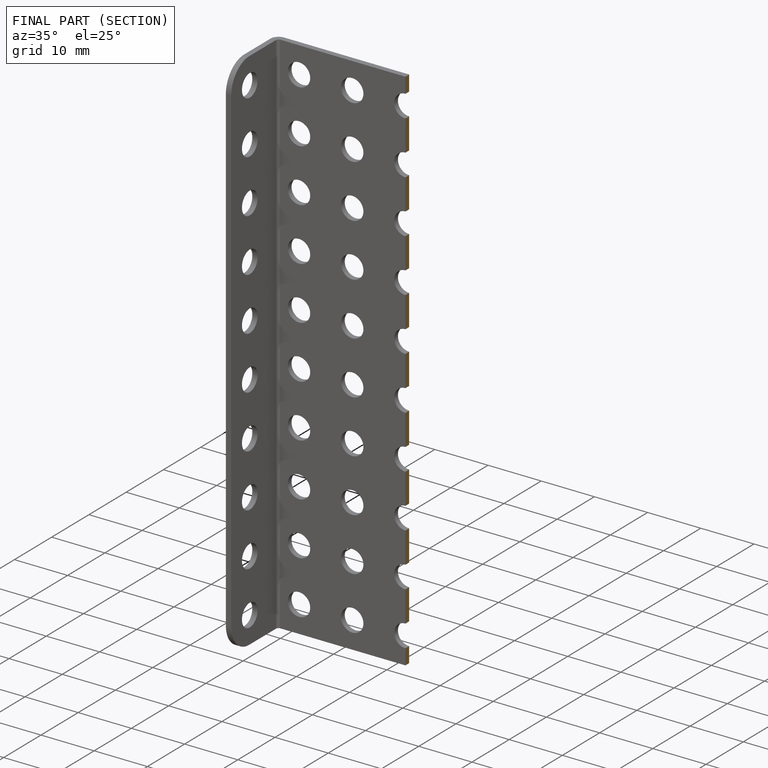
[diagram: finished part — half-section view (interior)]
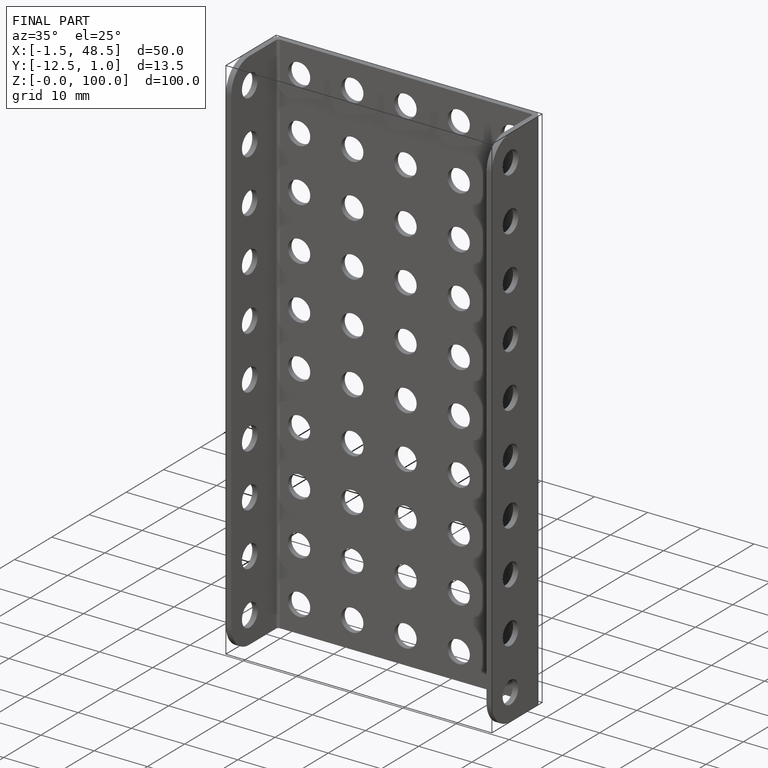
[diagram: finished part — iso view with bounding-box wireframe]
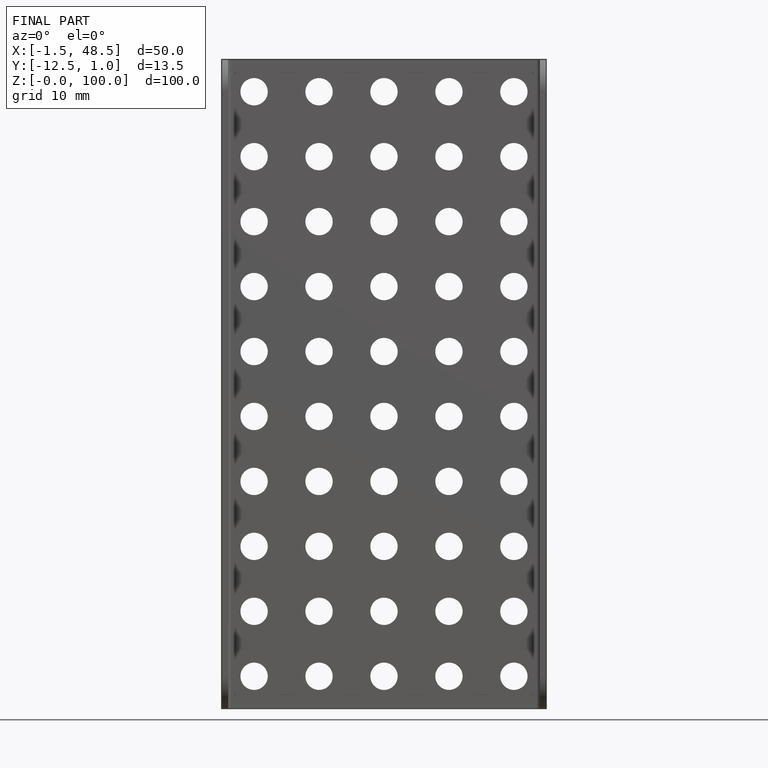
[diagram: finished part — front view with bounding-box wireframe]
